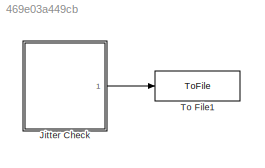
MODEL slx_469e03a449cb
KIND model
CONFIG AbsTol = auto
CONFIG EnableMultiTasking = on
CONFIG FixedStep = 1e-3
CONFIG MaxStep = auto
CONFIG MinStep = auto
CONFIG RelTol = 1e-3
CONFIG SampleTimeConstraint = Unconstrained
CONFIG SolverName = ode2
CONFIG StartTime = 0.0
CONFIG StopTime = inf
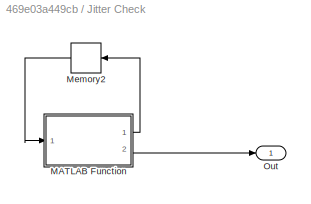
BLOCK [SubSystem] Jitter Check
  Ports = [0, 1]
  RequestExecContextInheritance = off
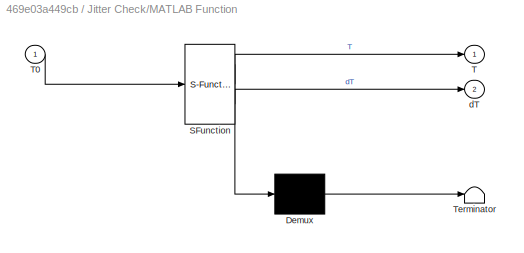
BLOCK [SubSystem] Jitter Check/MATLAB Function
  ErrorFcn = Stateflow.Translate.translate
  PermitHierarchicalResolution = ExplicitOnly
  Ports = [1, 2]
  RequestExecContextInheritance = off
  SFBlockType = MATLAB Function
  TreatAsAtomicUnit = on
BLOCK [Demux] Jitter Check/MATLAB Function/ Demux 
  Outputs = 1
  Ports = [1, 1]
BLOCK [S-Function] Jitter Check/MATLAB Function/ SFunction 
  EnableBusSupport = on
  FunctionName = sf_sfun
  PortCounts = [1 3]
  Ports = [1, 3]
  SFcnIsStateOwnerBlock = off
  SFunctionDeploymentMode = off
  Tag = Stateflow S-Function 2
BLOCK [Terminator] Jitter Check/MATLAB Function/ Terminator 
BLOCK [Outport] Jitter Check/MATLAB Function/T
  VectorParamsAs1DForOutWhenUnconnected = off
BLOCK [Inport] Jitter Check/MATLAB Function/T0
BLOCK [Outport] Jitter Check/MATLAB Function/dT
  Port = 2
  VectorParamsAs1DForOutWhenUnconnected = off
BLOCK [Memory] Jitter Check/Memory2
  InheritSampleTime = on
  NameLocation = top
BLOCK [Outport] Jitter Check/Out
  VectorParamsAs1DForOutWhenUnconnected = off
BLOCK [ToFile] To File1
  Filename = loggedtime.mat
  MatrixName = ts
  Ports = [1]
LINE Jitter Check/MATLAB Function:1 -> Jitter Check/Memory2:1
LINE Jitter Check/MATLAB Function:2 -> Jitter Check/Out:1
LINE Jitter Check/Memory2:1 -> Jitter Check/MATLAB Function:1
LINE Jitter Check:1 -> To File1:1
CHART Jitter Check/MATLAB Function states=1 transitions=1
  STATE_LABEL 'eML_blk_kernel()'
  STATE_LABEL "SCRIPT:\nfunction [T, dT]= get_time(T0)\n\ncoder.extrinsic('now');\ncoder.extrinsic('datevec');\n\nT = 0;\ndT = 0;\n\n[~, ~, ~, ~, ~, T] = datevec(now);\n\nif T>T0\n    dT = T-T0;\nelse\n    dT = T-T0+60;\nend\n\nend"
CHART  states=0 transitions=0
